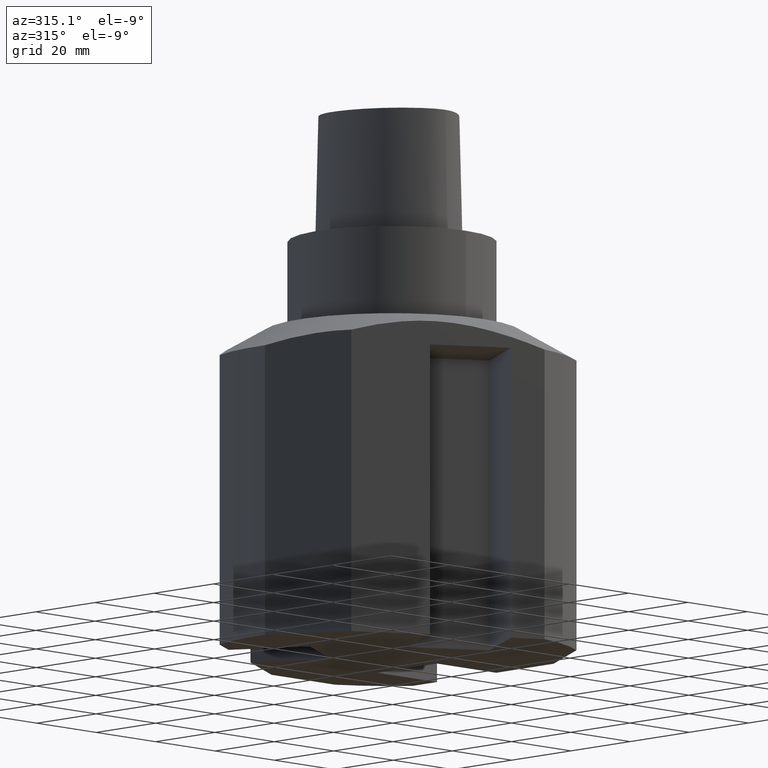
[diagram: clean part render]
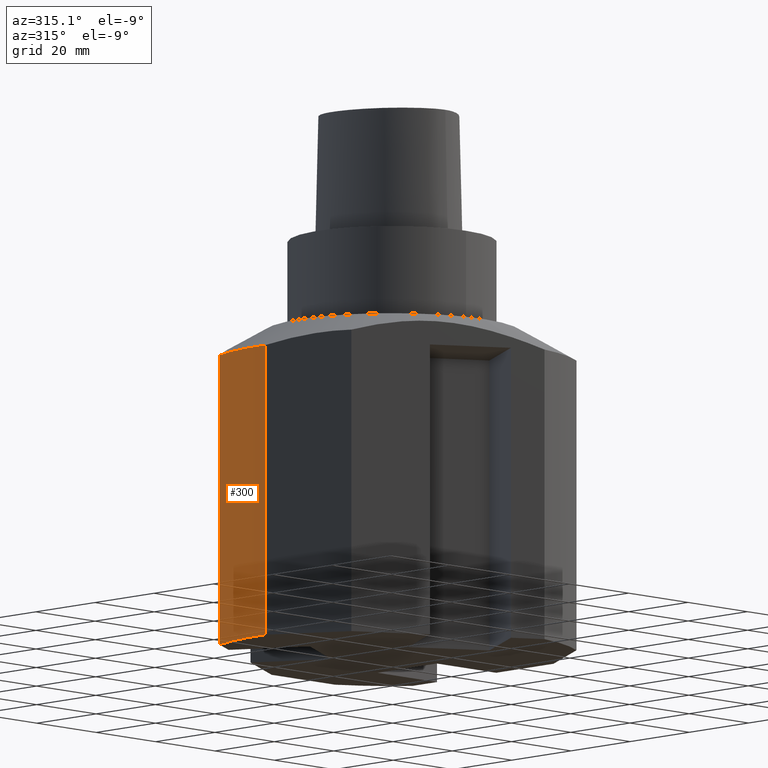
[diagram: same view with one face highlighted and labeled with its STEP entity id]
A machine part, auxiliary view. The second image highlights one B-rep face of the part: STEP entity #300.
In plain terms, the highlighted cylindrical surface (partial cylindrical patch) has radius 45 mm, axis along (0, -0, -1).
Its self-contained STEP definition (entity closure, byte-faithful):
#150=EDGE_CURVE('240[2]',#411,#412,#413,.T.);
#212=EDGE_CURVE('240[2]',#411,#500,#501,.T.);
#222=EDGE_CURVE('240[2]',#500,#429,#515,.T.);
#300=ADVANCED_FACE('240[2]',(#611),#612,.T.);
#319=EDGE_CURVE('240[2]',#429,#412,#635,.T.);
#411=VERTEX_POINT('',#760);
#412=VERTEX_POINT('',#761);
#413=LINE('',#762,#763);
#429=VERTEX_POINT('',#786);
#500=VERTEX_POINT('',#1046);
#501=CIRCLE('',#1047,45.0);
#515=LINE('',#1070,#1071);
#611=FACE_OUTER_BOUND('',#1266,.T.);
#612=CYLINDRICAL_SURFACE('',#1267,45.0);
#635=CIRCLE('',#1681,45.0);
#760=CARTESIAN_POINT('',(-44.9487802154215,-2.14642892864786,-99.9999999999999));
#761=CARTESIAN_POINT('',(-44.9487802154215,-2.14642892864786,-30.0829021630708));
#762=CARTESIAN_POINT('',(-44.9487802154215,-2.14642892864786,-63.0414510815353));
#763=VECTOR('',#1749,1.0);
#786=CARTESIAN_POINT('',(-41.9948974278316,16.1687535087248,-30.0829021630708));
#1046=CARTESIAN_POINT('',(-41.9948974278316,16.1687535087248,-99.9999999999999));
#1047=AXIS2_PLACEMENT_3D('',#1863,#1864,#1865);
#1070=CARTESIAN_POINT('',(-41.9948974278316,16.1687535087248,-63.0414510815353));
#1071=VECTOR('',#1870,1.0);
#1266=EDGE_LOOP('',(#1973,#1974,#1975,#1976));
#1267=AXIS2_PLACEMENT_3D('',#1977,#1978,#1979);
#1681=AXIS2_PLACEMENT_3D('',#2013,#2014,#2015);
#1749=DIRECTION('',(-0.0,-0.0,1.0));
#1863=CARTESIAN_POINT('',(3.86017556403034E-015,0.0,-99.9999999999999));
#1864=DIRECTION('',(0.0,-0.0,-1.0));
#1865=DIRECTION('',(0.0,-1.0,0.0));
#1870=DIRECTION('',(-0.0,0.0,1.0));
#1973=ORIENTED_EDGE('',*,*,#222,.F.);
#1974=ORIENTED_EDGE('',*,*,#212,.F.);
#1975=ORIENTED_EDGE('',*,*,#150,.T.);
#1976=ORIENTED_EDGE('',*,*,#319,.F.);
#1977=CARTESIAN_POINT('',(3.86017556403034E-015,0.0,-63.0414510815353));
#1978=DIRECTION('',(0.0,-0.0,-1.0));
#1979=DIRECTION('',(0.0,-1.0,0.0));
#2013=CARTESIAN_POINT('',(1.84204649215337E-015,0.0,-30.0829021630707));
#2014=DIRECTION('',(0.0,0.0,1.0));
#2015=DIRECTION('',(0.0,-1.0,0.0));